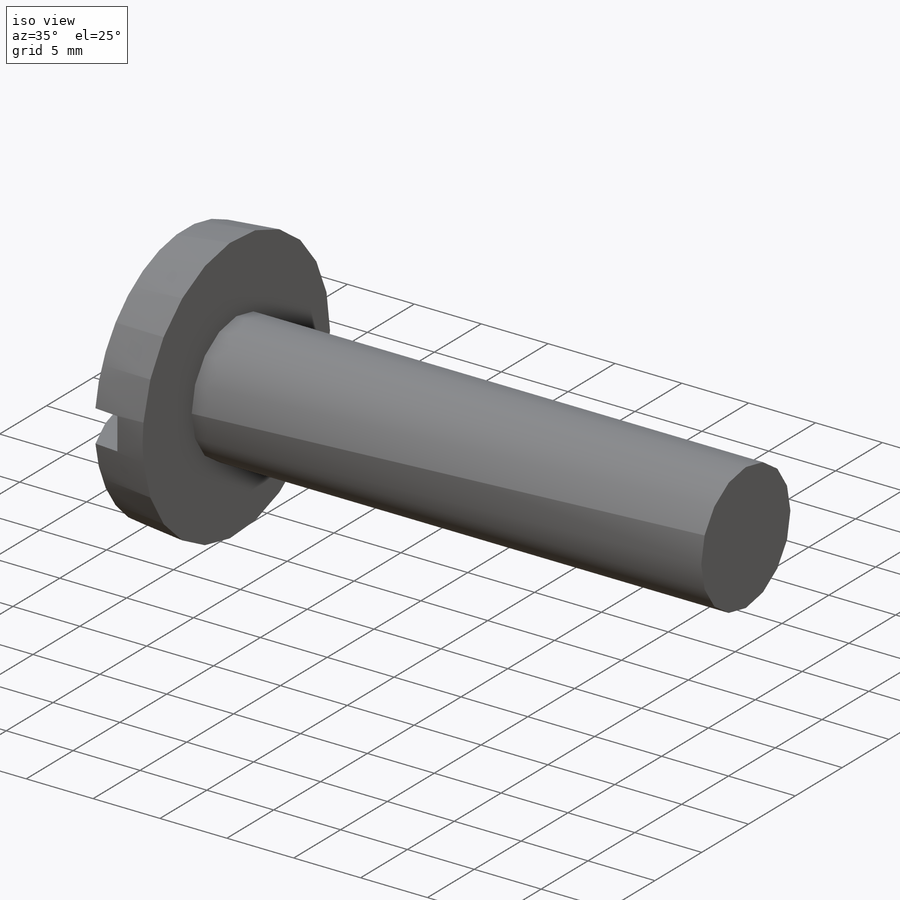
[diagram: iso view]
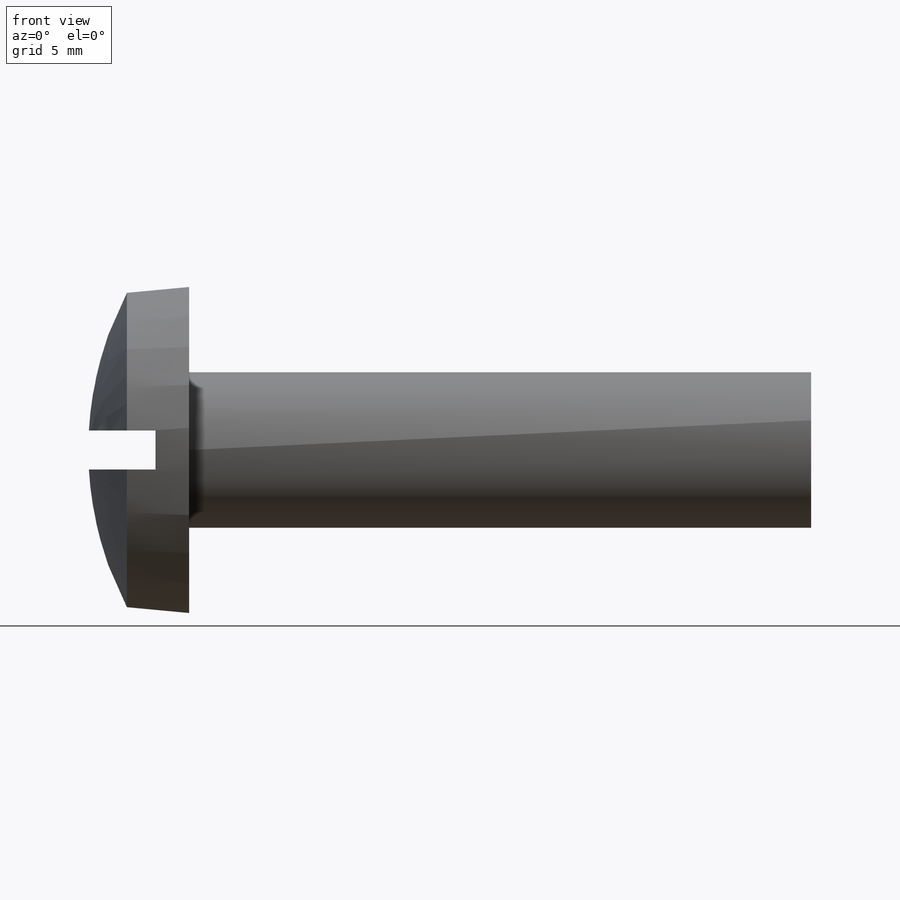
[diagram: front view]
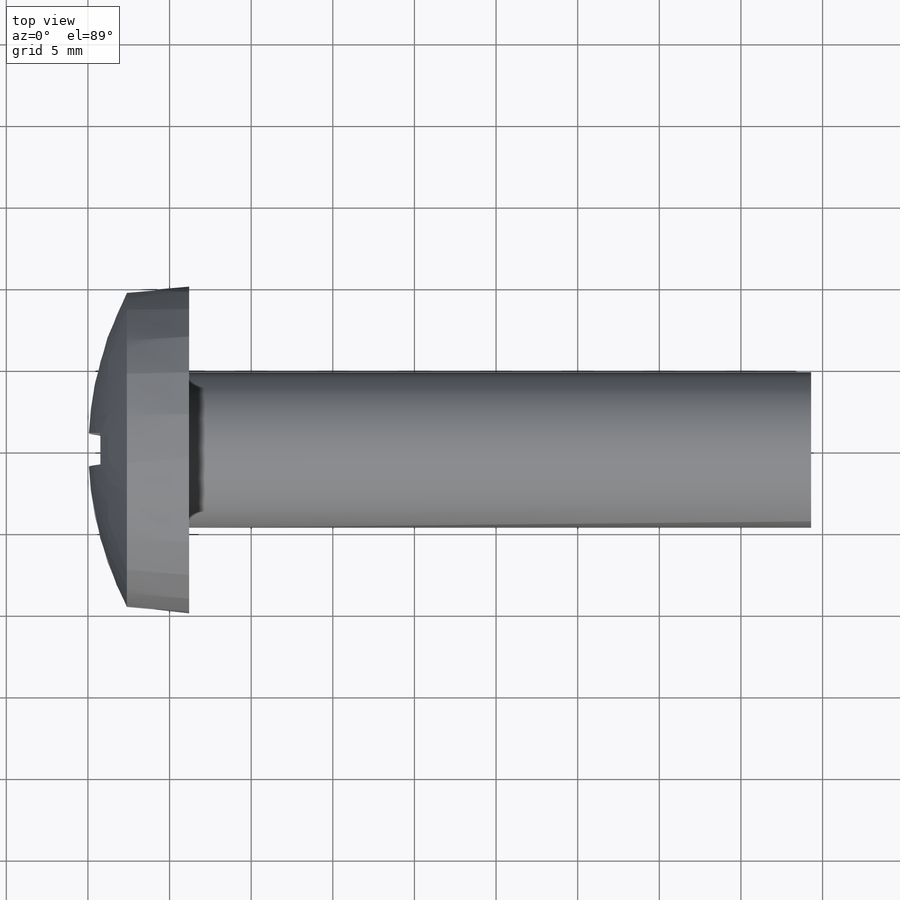
[diagram: top view]
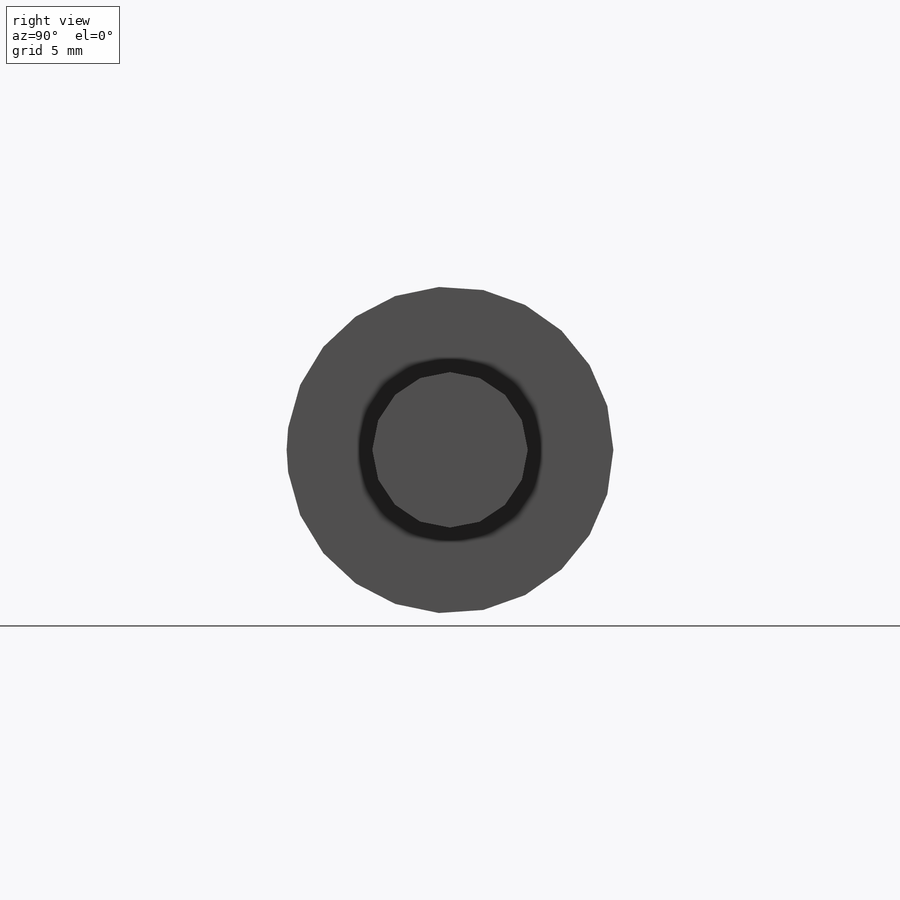
[diagram: right view]
SOLIDWORKS PART (.sldprt)
format: sldprt  version: not decoded by parser v0  size: 1,183,232 bytes
history: native  units: mm
features: sketch x5, plane x4, material x1, revolve x1, thread x1, cut_extrude x1, pattern_circular x1, cut_revolve x1, pattern_linear x1 (+10 scaffold rows collapsed)
feature tree (26):
  scaffold x10  (default folders/planes/origin — collapsed)
  material  "Material <not specified>"
  plane  "Plane1"
  plane  "Plane2"
  plane  "Plane3"
  sketch  "BodySke"  dims[D1=~7.099516mm Head_ang=85.0deg Oval_ht=0.7366mm Head_ht=1.9812mm Diameter=3.175mm Length=9.525mm Head_dia=6.6802mm Advance=0.635mm Thread_nom=9.525mm Thread_lim=36.5125mm]
  revolve  "Base-Revolve"  [1 undecoded]
  thread  "ThreadCosmetic"  Diameter=4.06908mm Thread_length=4.06908mm Thread_minor=2.41808mm  [1 undecoded]
  sketch  "Sketch2"  dims[D1=8.7376mm D2=4.3688mm D3=0.6858mm Slot_width=1.0922mm]
  cut_extrude  "Slot"  Depth=1.2192mm Slot_depth=1.2192mm
  sketch  "Sketch3"  dims[Cross_width=0.9144mm D1=0.5588mm Cross_dia=4.3688mm D2=2.8448mm]
  plane  "Plane4"  Offset=2.4892mm Cross_depth=2.4892mm
  sketch  "Sketch4"  dims[D1=0.5588mm D2=0.2794mm D3=0.5588mm D4=0.2794mm]
  pattern_circular  "CirPattern1"  Count=2 Angle=90deg
  sketch  "ThdSchSke"  dims[c1.Thread_minor=~1.03886mm c1.Diameter=~1.413535mm c1.Start=~0.988134mm c1.D4=~4.446753mm c1.Vee=60.0deg c2.Thread_minor=~1.03886mm c2.Start=~2.540025mm c2.D1=~0.108159mm c2.D2=~0.108159mm c3.D1=~0.216319mm c3.SideAngle=55.0deg c3.D2=~0.216319mm c3.VeeAngle=70.0deg c3.Thread_minor=~3.32486mm c3.Overcut=5.207mm c3.Diameter=4.1656mm c3.D6=~8.326268mm c4.D1=~8.326268mm c5.D1=90.0deg c5.Start=11.1125mm c6.Start=~44.450025mm c7.Start=~3.37312mm]
  cut_revolve  "ThreadSchematic"  Angle=360deg
  pattern_linear  "ThdSchPat"  Count1=7 Count2=1 Spacing1=0.67818mm Spacing2=50mm Num_threads=7 Advance=0.67818mm
decode coverage: 10 of 11 modeling features carry decoded parameters
note: ~ marks probable driven/reference dimensions
note: 2 parameter values undecoded
note: suppression state not decoded; provenance and decode notes live in map.json
